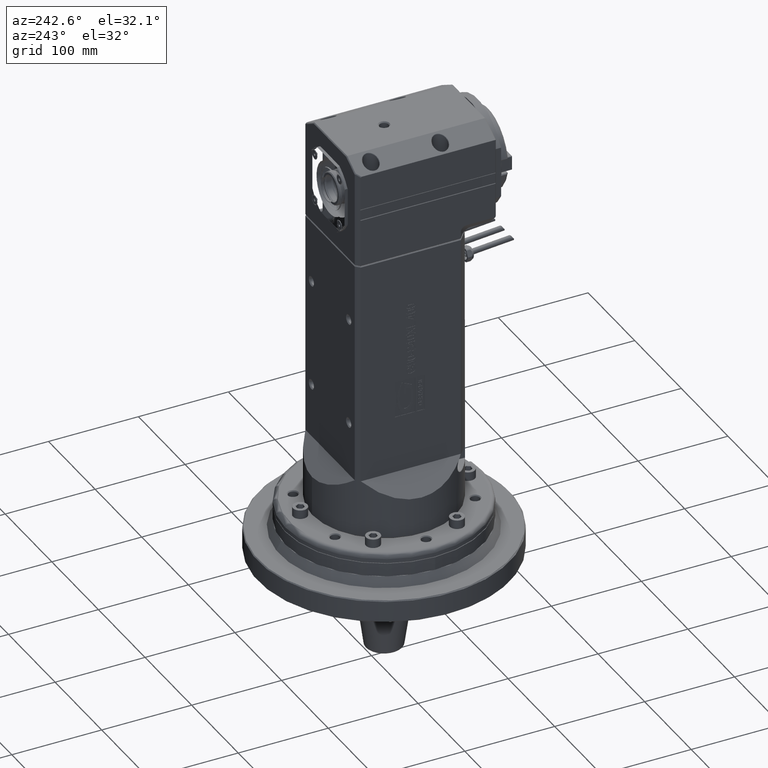
[diagram: clean part render]
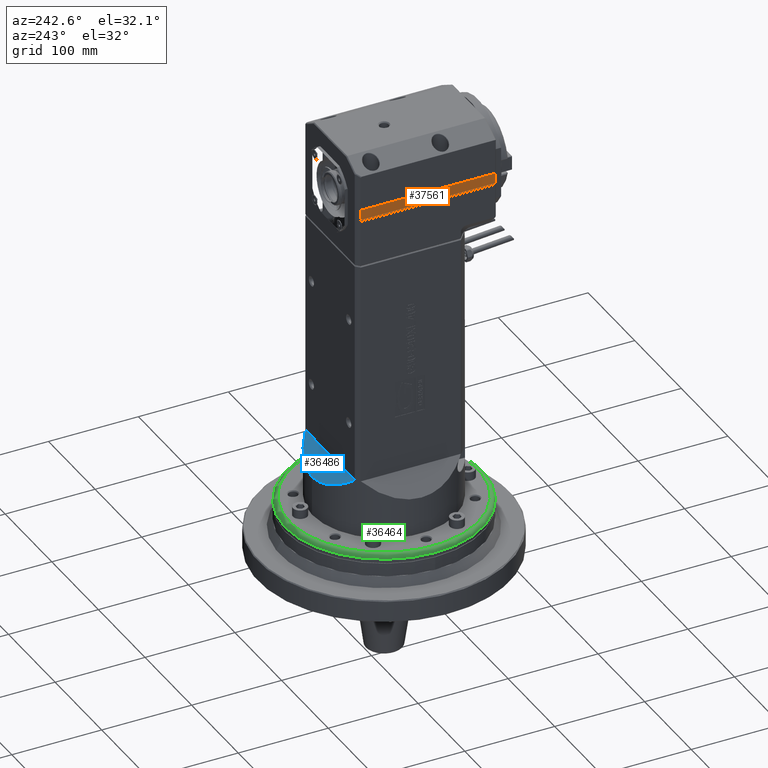
[diagram: same view with three faces highlighted in distinct colors, each labeled with its STEP entity id]
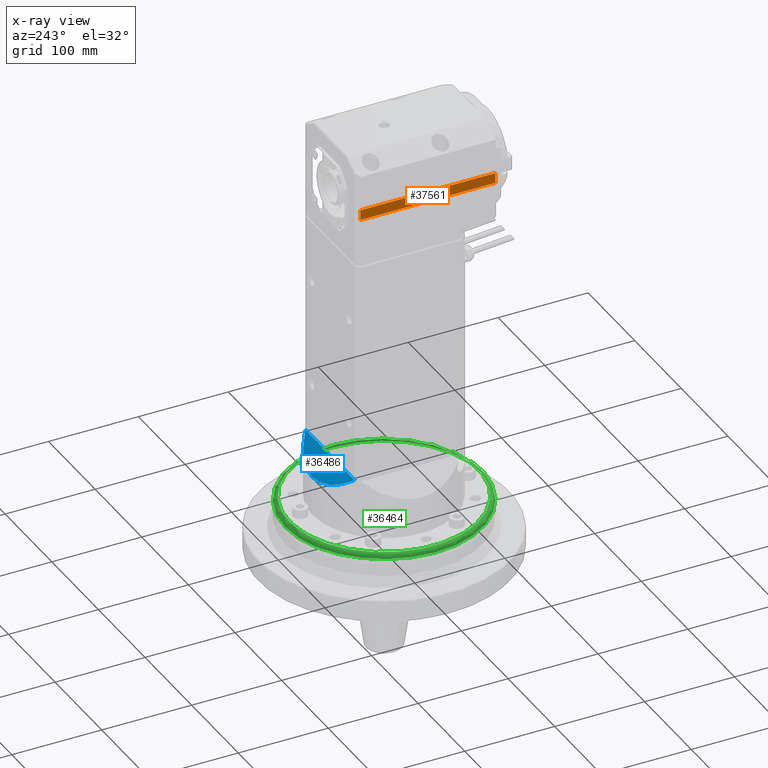
[diagram: x-ray of the same camera — body ghosted, the three highlighted faces saturated]
A machine part, auxiliary view with three faces highlighted in distinct colors.
The next image is the same camera in x-ray (body ghosted, the three faces saturated) — at least one of them is partly hidden behind the body in this view.
Their STEP definitions:

[orange] entity #37561 — the highlighted planar face has unit normal (-1, -0, -0).
#4136=PLANE('',#40896);
#5695=FACE_OUTER_BOUND('',#8061,.T.);
#8061=EDGE_LOOP('',(#30961,#30962,#30963,#30964));
#10626=LINE('',#66256,#13172);
#10635=LINE('',#66273,#13181);
#10636=LINE('',#66275,#13182);
#10637=LINE('',#66276,#13183);
#13172=VECTOR('',#48488,0.448818897637795);
#13181=VECTOR('',#48499,5.9065945741378);
#13182=VECTOR('',#48500,0.448818897637795);
#13183=VECTOR('',#48501,5.9065945741378);
#18163=VERTEX_POINT('',#66254);
#18164=VERTEX_POINT('',#66255);
#18171=VERTEX_POINT('',#66272);
#18172=VERTEX_POINT('',#66274);
#22657=EDGE_CURVE('',#18163,#18164,#10626,.T.);
#22666=EDGE_CURVE('',#18164,#18171,#10635,.T.);
#22667=EDGE_CURVE('',#18171,#18172,#10636,.T.);
#22668=EDGE_CURVE('',#18163,#18172,#10637,.T.);
#30961=ORIENTED_EDGE('',*,*,#22657,.T.);
#30962=ORIENTED_EDGE('',*,*,#22666,.T.);
#30963=ORIENTED_EDGE('',*,*,#22667,.T.);
#30964=ORIENTED_EDGE('',*,*,#22668,.F.);
#37561=ADVANCED_FACE('',(#5695),#4136,.T.);
#40896=AXIS2_PLACEMENT_3D('',#66271,#48497,#48498);
#48488=DIRECTION('',(0.,-1.,0.));
#48497=DIRECTION('center_axis',(1.,0.,0.));
#48498=DIRECTION('ref_axis',(0.,1.,0.));
#48499=DIRECTION('',(0.,0.,-1.));
#48500=DIRECTION('',(0.,1.,0.));
#48501=DIRECTION('',(0.,0.,-1.));
#66254=CARTESIAN_POINT('',(2.25590551181102,-14.5393700787402,3.70866141732283));
#66255=CARTESIAN_POINT('',(2.25590551181102,-14.988188976378,3.70866141732283));
#66256=CARTESIAN_POINT('',(2.25590551181102,-14.5393700787402,3.70866141732283));
#66271=CARTESIAN_POINT('Origin',(2.25590551181102,-14.988188976378,3.74015748031496));
#66272=CARTESIAN_POINT('',(2.25590551181102,-14.988188976378,-2.19793315681339));
#66273=CARTESIAN_POINT('',(2.25590551181102,-14.988188976378,3.70866141732283));
#66274=CARTESIAN_POINT('',(2.25590551181102,-14.5393700787402,-2.19793315681339));
#66275=CARTESIAN_POINT('',(2.25590551181102,-14.988188976378,-2.19793315681339));
#66276=CARTESIAN_POINT('',(2.25590551181102,-14.5393700787402,3.70866141732283));

[blue] entity #36486 — the highlighted planar face has unit normal (0, -0.7071, -0.7071).
#520=ELLIPSE('',#38997,4.45421594448219,3.1496062992126);
#521=ELLIPSE('',#38998,4.45421594448219,3.1496062992126);
#3688=PLANE('',#39007);
#4620=FACE_OUTER_BOUND('',#6833,.T.);
#6833=EDGE_LOOP('',(#25491,#25492,#25493));
#9312=LINE('',#54293,#11858);
#11858=VECTOR('',#43398,4.16653749774016);
#16376=VERTEX_POINT('',#54178);
#16377=VERTEX_POINT('',#54180);
#16378=VERTEX_POINT('',#54183);
#19901=EDGE_CURVE('',#16377,#16376,#520,.T.);
#19903=EDGE_CURVE('',#16378,#16377,#521,.T.);
#19921=EDGE_CURVE('',#16378,#16376,#9312,.T.);
#25491=ORIENTED_EDGE('',*,*,#19903,.T.);
#25492=ORIENTED_EDGE('',*,*,#19901,.T.);
#25493=ORIENTED_EDGE('',*,*,#19921,.F.);
#36486=ADVANCED_FACE('',(#4620),#3688,.F.);
#38997=AXIS2_PLACEMENT_3D('',#54181,#43368,#43369);
#38998=AXIS2_PLACEMENT_3D('',#54184,#43371,#43372);
#39007=AXIS2_PLACEMENT_3D('',#54292,#43396,#43397);
#43368=DIRECTION('center_axis',(0.,-0.707106781186548,-0.707106781186548));
#43369=DIRECTION('ref_axis',(0.,-0.707106781186547,0.707106781186547));
#43371=DIRECTION('center_axis',(0.,-0.707106781186548,-0.707106781186548));
#43372=DIRECTION('ref_axis',(0.,-0.707106781186547,0.707106781186547));
#43396=DIRECTION('center_axis',(0.,0.707106781186548,0.707106781186548));
#43397=DIRECTION('ref_axis',(0.,-0.707106781186547,0.707106781186547));
#43398=DIRECTION('',(1.,0.,0.));
#54178=CARTESIAN_POINT('',(2.08326874886968,-2.55511811023622,-2.36220472440945));
#54180=CARTESIAN_POINT('',(3.85715527290505E-16,-1.76771653543307,-3.1496062992126));
#54181=CARTESIAN_POINT('Origin',(0.,-4.91732283464567,0.));
#54183=CARTESIAN_POINT('',(-2.08326874886968,-2.55511811023622,-2.36220472440945));
#54184=CARTESIAN_POINT('Origin',(0.,-4.91732283464567,0.));
#54292=CARTESIAN_POINT('Origin',(-3.77952755905512,-1.76771653543307,-3.1496062992126));
#54293=CARTESIAN_POINT('',(-2.08326874886968,-2.55511811023622,-2.36220472440945));

[green] entity #36464 — the highlighted toroidal blend (fillet) surface has major radius 105 mm and minor (blend) radius 5 mm.
#4533=TOROIDAL_SURFACE('',#38937,4.13385826771654,0.196850393700787);
#4598=FACE_OUTER_BOUND('',#6801,.T.);
#6801=EDGE_LOOP('',(#25348,#25349,#25350,#25351,#25352));
#14426=CIRCLE('',#38935,4.33070866141732);
#14427=CIRCLE('',#38936,4.33070866141732);
#14428=CIRCLE('',#38938,4.13385826771654);
#14429=CIRCLE('',#38939,0.196850393700787);
#16334=VERTEX_POINT('',#54052);
#16335=VERTEX_POINT('',#54053);
#16336=VERTEX_POINT('',#54058);
#19838=EDGE_CURVE('',#16334,#16335,#14426,.T.);
#19840=EDGE_CURVE('',#16335,#16334,#14427,.T.);
#19841=EDGE_CURVE('',#16336,#16336,#14428,.T.);
#19842=EDGE_CURVE('',#16336,#16335,#14429,.T.);
#25348=ORIENTED_EDGE('',*,*,#19841,.F.);
#25349=ORIENTED_EDGE('',*,*,#19842,.T.);
#25350=ORIENTED_EDGE('',*,*,#19840,.T.);
#25351=ORIENTED_EDGE('',*,*,#19838,.T.);
#25352=ORIENTED_EDGE('',*,*,#19842,.F.);
#36464=ADVANCED_FACE('',(#4598),#4533,.T.);
#38935=AXIS2_PLACEMENT_3D('',#54054,#43221,#43222);
#38936=AXIS2_PLACEMENT_3D('',#54056,#43224,#43225);
#38937=AXIS2_PLACEMENT_3D('',#54057,#43226,#43227);
#38938=AXIS2_PLACEMENT_3D('',#54059,#43228,#43229);
#38939=AXIS2_PLACEMENT_3D('',#54060,#43230,#43231);
#43221=DIRECTION('center_axis',(0.,-1.,0.));
#43222=DIRECTION('ref_axis',(-1.,0.,0.));
#43224=DIRECTION('center_axis',(0.,-1.,0.));
#43225=DIRECTION('ref_axis',(-1.,0.,0.));
#43226=DIRECTION('center_axis',(0.,-1.,0.));
#43227=DIRECTION('ref_axis',(0.999990244209128,0.,-0.00441718083943513));
#43228=DIRECTION('center_axis',(0.,-1.,0.));
#43229=DIRECTION('ref_axis',(1.,0.,0.));
#43230=DIRECTION('center_axis',(-0.004417180839435,0.,-0.999990244209128));
#43231=DIRECTION('ref_axis',(-0.999990244209128,0.,0.004417180839435));
#54052=CARTESIAN_POINT('',(-4.33070866141732,0.196850393700787,7.5937744435315E-16));
#54053=CARTESIAN_POINT('',(-4.3306664119293,0.196850393700787,0.0191295233203878));
#54054=CARTESIAN_POINT('Origin',(0.,0.196850393700787,0.));
#54056=CARTESIAN_POINT('Origin',(0.,0.196850393700787,0.));
#54057=CARTESIAN_POINT('Origin',(0.,0.196850393700787,0.));
#54058=CARTESIAN_POINT('',(-4.13381793865978,1.09273919746571E-15,0.0182599995330975));
#54059=CARTESIAN_POINT('Origin',(0.,1.08399728388583E-15,0.));
#54060=CARTESIAN_POINT('Origin',(-4.13381793865978,0.196850393700787,0.0182599995330975));